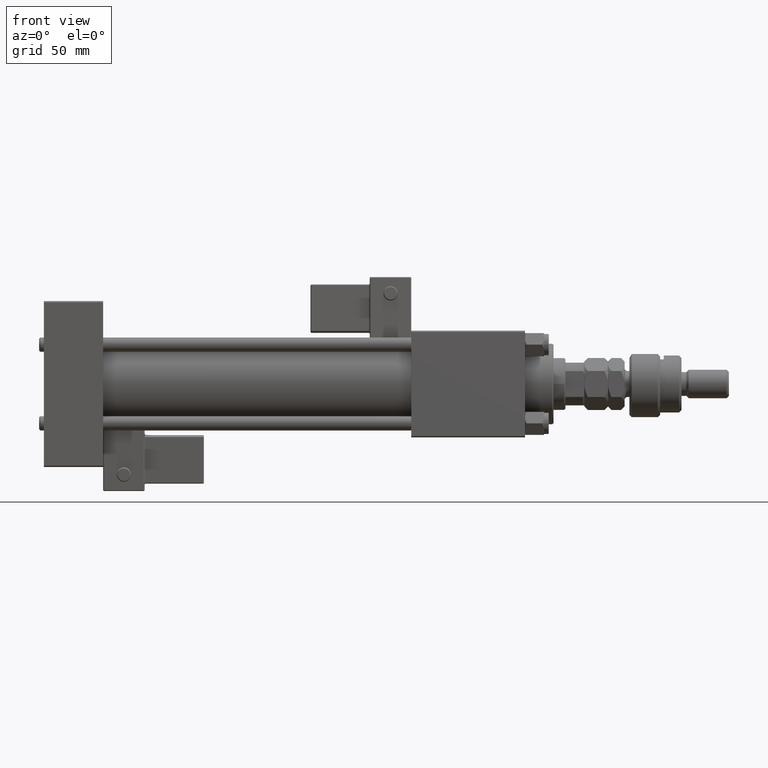
[diagram: clean part render]
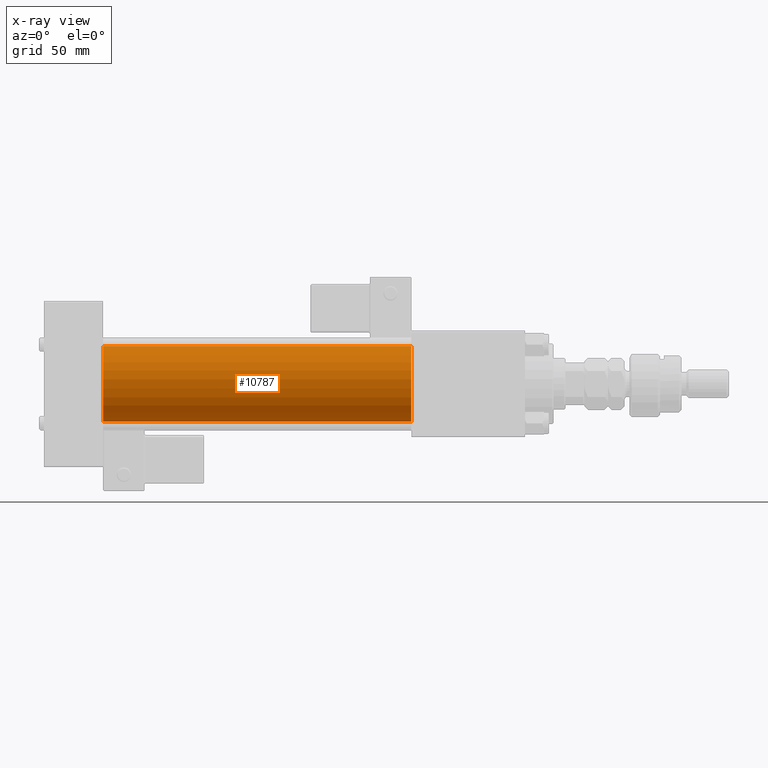
[diagram: x-ray — body ghosted, one internal face saturated and labeled with its STEP entity id]
A machine part, front view, then the same camera in x-ray: the body is ghosted and one INTERNAL B-rep face — a face not visible from any outside direction — is saturated and labeled: STEP entity #10787.
In plain terms, the highlighted cylindrical surface (partial cylindrical patch) has radius 16 mm, axis along (-1, -0, -0).
Its self-contained STEP definition (entity closure, byte-faithful):
#899 = CARTESIAN_POINT ( 'NONE',  ( 155.0000000000000000, -6.426503353294456087E-16, -16.00000000000000000 ) ) ;
#1022 = CIRCLE ( 'NONE', #28569, 16.00000000000000000 ) ;
#4219 = CARTESIAN_POINT ( 'NONE',  ( 155.0000000000000000, -2.602085213965210642E-15, 16.00000000000000000 ) ) ;
#7049 = ORIENTED_EDGE ( 'NONE', *, *, #19632, .F. ) ;
#8186 = EDGE_CURVE ( 'NONE', #25842, #35883, #31645, .T. ) ;
#8820 = DIRECTION ( 'NONE',  ( 1.000000000000000000, 0.000000000000000000, 0.000000000000000000 ) ) ;
#10034 = EDGE_LOOP ( 'NONE', ( #15409, #48304, #7049, #35943 ) ) ;
#10787 = ADVANCED_FACE ( 'NONE', ( #24980 ), #25257, .F. ) ;
#13526 = CARTESIAN_POINT ( 'NONE',  ( 155.0000000000000000, -2.602085213965210642E-15, 0.000000000000000000 ) ) ;
#15409 = ORIENTED_EDGE ( 'NONE', *, *, #8186, .T. ) ;
#16457 = DIRECTION ( 'NONE',  ( -1.000000000000000000, -0.000000000000000000, -0.000000000000000000 ) ) ;
#16831 = VECTOR ( 'NONE', #31988, 1000.000000000000000 ) ;
#19303 = EDGE_CURVE ( 'NONE', #35883, #34726, #23115, .T. ) ;
#19632 = EDGE_CURVE ( 'NONE', #26910, #34726, #1022, .T. ) ;
#20112 = EDGE_CURVE ( 'NONE', #25842, #26910, #50985, .T. ) ;
#21002 = DIRECTION ( 'NONE',  ( 1.000000000000000000, 0.000000000000000000, 0.000000000000000000 ) ) ;
#23115 = LINE ( 'NONE', #23920, #16831 ) ;
#23181 = CARTESIAN_POINT ( 'NONE',  ( 25.00000000000000000, -2.602085213965210642E-15, 16.00000000000000000 ) ) ;
#23920 = CARTESIAN_POINT ( 'NONE',  ( 155.0000000000000000, -6.426503353294456087E-16, -16.00000000000000000 ) ) ;
#24980 = FACE_OUTER_BOUND ( 'NONE', #10034, .T. ) ;
#25257 = CYLINDRICAL_SURFACE ( 'NONE', #32590, 16.00000000000000000 ) ;
#25842 = VERTEX_POINT ( 'NONE', #4219 ) ;
#26910 = VERTEX_POINT ( 'NONE', #23181 ) ;
#28569 = AXIS2_PLACEMENT_3D ( 'NONE', #33512, #21002, #29620 ) ;
#28597 = CARTESIAN_POINT ( 'NONE',  ( 155.0000000000000000, -2.602085213965210642E-15, 0.000000000000000000 ) ) ;
#29620 = DIRECTION ( 'NONE',  ( 0.000000000000000000, 0.000000000000000000, -1.000000000000000000 ) ) ;
#31645 = CIRCLE ( 'NONE', #45894, 16.00000000000000000 ) ;
#31988 = DIRECTION ( 'NONE',  ( -1.000000000000000000, -0.000000000000000000, -0.000000000000000000 ) ) ;
#32590 = AXIS2_PLACEMENT_3D ( 'NONE', #28597, #45586, #41388 ) ;
#33512 = CARTESIAN_POINT ( 'NONE',  ( 25.00000000000000000, -2.602085213965210642E-15, 0.000000000000000000 ) ) ;
#34412 = DIRECTION ( 'NONE',  ( 0.000000000000000000, 0.000000000000000000, -1.000000000000000000 ) ) ;
#34726 = VERTEX_POINT ( 'NONE', #34889 ) ;
#34889 = CARTESIAN_POINT ( 'NONE',  ( 25.00000000000000000, -6.426503353294456087E-16, -16.00000000000000000 ) ) ;
#35883 = VERTEX_POINT ( 'NONE', #899 ) ;
#35943 = ORIENTED_EDGE ( 'NONE', *, *, #20112, .F. ) ;
#41388 = DIRECTION ( 'NONE',  ( 0.000000000000000000, 0.000000000000000000, 1.000000000000000000 ) ) ;
#45586 = DIRECTION ( 'NONE',  ( -1.000000000000000000, -0.000000000000000000, -0.000000000000000000 ) ) ;
#45894 = AXIS2_PLACEMENT_3D ( 'NONE', #13526, #8820, #34412 ) ;
#45988 = CARTESIAN_POINT ( 'NONE',  ( 155.0000000000000000, -2.602085213965210642E-15, 16.00000000000000000 ) ) ;
#48304 = ORIENTED_EDGE ( 'NONE', *, *, #19303, .T. ) ;
#50985 = LINE ( 'NONE', #45988, #52600 ) ;
#52600 = VECTOR ( 'NONE', #16457, 1000.000000000000000 ) ;